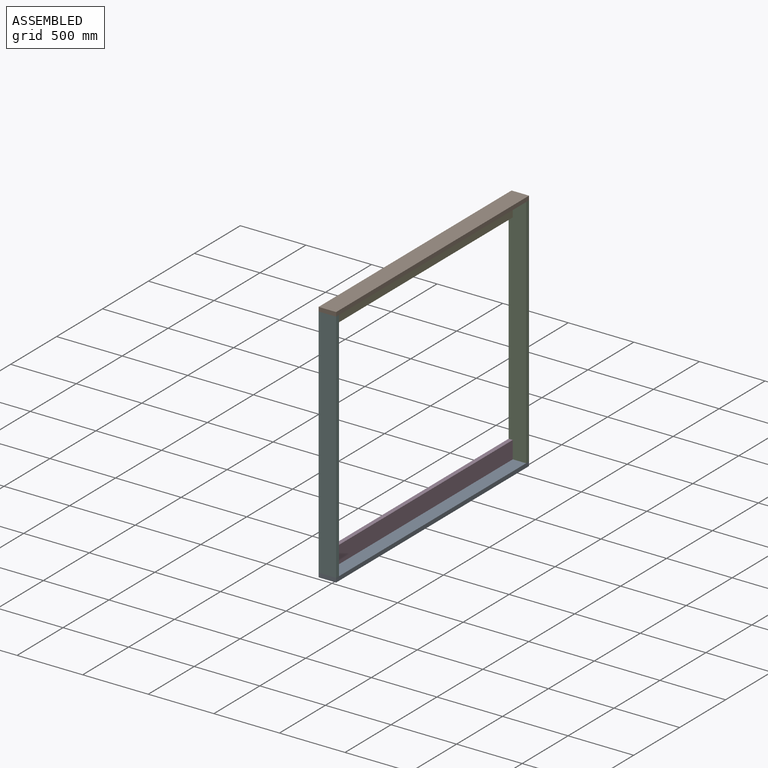
[diagram: assembled view]
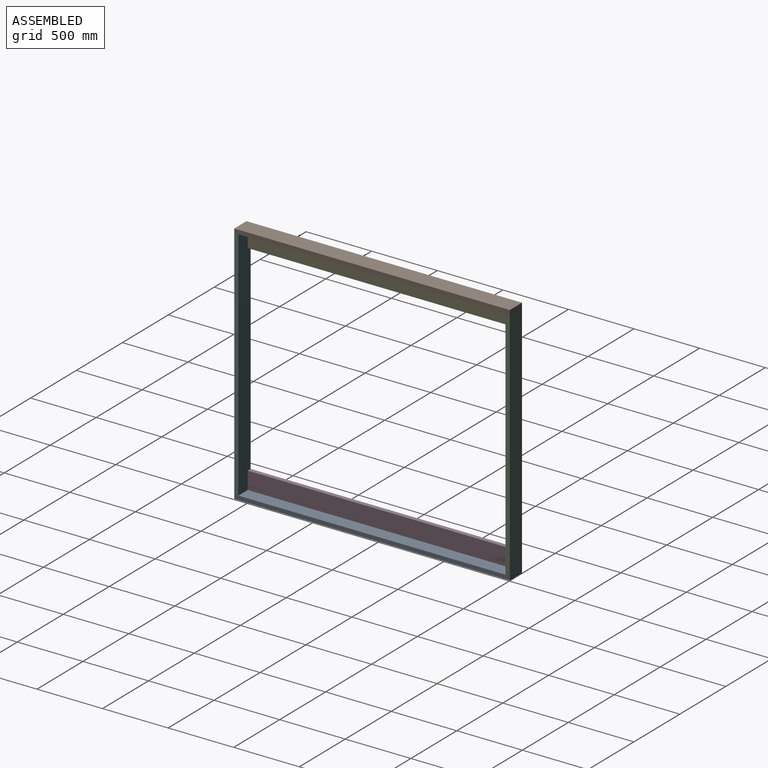
[diagram: assembled view, second angle]
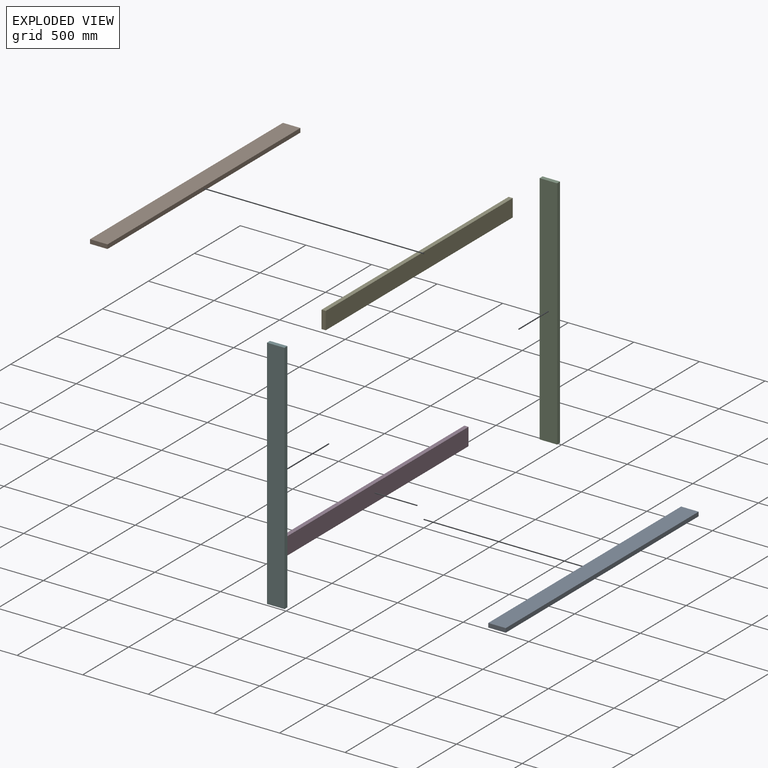
[diagram: exploded view]
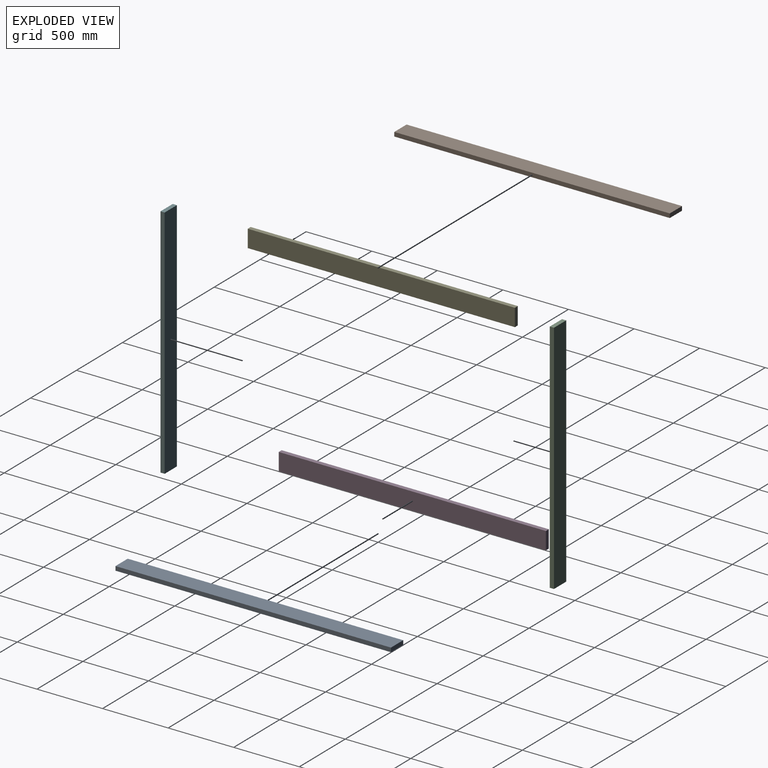
[diagram: exploded view, second angle]
ASSEMBLY  parts=6 mates=5
PART A: 6 faces, bbox 133.4x2100x31.8 mm
  f0: plane 2100x31.75mm, normal (1,0,0), area 66675mm2, adj f1,f3,f4,f5
  f1: plane 2100x133.35mm, normal (0,0,1), area 280035mm2, adj f0,f2,f4,f5
  f2: plane 2100x31.75mm, normal (-1,0,0), area 66675mm2, adj f1,f3,f4,f5
  f3: plane 2100x133.35mm, normal (0,0,-1), area 280035mm2, adj f0,f2,f4,f5
  f4: plane 133.35x31.75mm, normal (0,-1,0), area 4233.9mm2, adj f0,f1,f2,f3
  f5: plane 133.35x31.75mm, normal (0,1,0), area 4233.9mm2, adj f0,f1,f2,f3
PART B: same geometry as A
PART C: 6 faces, bbox 133.4x1800x31.8 mm
  f0: plane 1800x31.75mm, normal (1,0,0), area 57150mm2, adj f1,f3,f4,f5
  f1: plane 1800x133.35mm, normal (0,0,1), area 240030mm2, adj f0,f2,f4,f5
  f2: plane 1800x31.75mm, normal (-1,0,0), area 57150mm2, adj f1,f3,f4,f5
  f3: plane 1800x133.35mm, normal (0,0,-1), area 240030mm2, adj f0,f2,f4,f5
  f4: plane 133.35x31.75mm, normal (0,-1,0), area 4233.9mm2, adj f0,f1,f2,f3
  f5: plane 133.35x31.75mm, normal (0,1,0), area 4233.9mm2, adj f0,f1,f2,f3
PART D: 6 faces, bbox 133.4x2036.5x31.8 mm
  f0: plane 2036.5x31.75mm, normal (1,0,0), area 64658.9mm2, adj f1,f3,f4,f5
  f1: plane 2036.5x133.35mm, normal (0,0,1), area 271567.3mm2, adj f0,f2,f4,f5
  f2: plane 2036.5x31.75mm, normal (-1,0,0), area 64658.9mm2, adj f1,f3,f4,f5
  f3: plane 2036.5x133.35mm, normal (0,0,-1), area 271567.3mm2, adj f0,f2,f4,f5
  f4: plane 133.35x31.75mm, normal (0,-1,0), area 4233.9mm2, adj f0,f1,f2,f3
  f5: plane 133.35x31.75mm, normal (0,1,0), area 4233.9mm2, adj f0,f1,f2,f3
PART E: same geometry as D
PART F: same geometry as C
PLACE A t=(0,0,-1831.75)mm
PLACE B at identity fixed
PLACE C rot(axis=(1,0,0),90deg) t=(0,1034.12,-915.88)mm
PLACE D rot(axis=(0,1,0),90deg) t=(-50.8,0,-1749.2)mm
PLACE E rot(axis=(0,1,0),90deg) t=(-50.8,0,-82.55)mm
PLACE F rot(axis=(-1,0,0),90deg) t=(0,-1034.12,-915.88)mm
MATE fastened C.f0 <-> B.f0  axis (-1,0,0) through (66.68,1050,-15.87)mm
MATE fastened E.f3 <-> F.f2  axis (-1,0,0) through (-66.67,-1018.25,-15.87)mm
MATE fastened D.f3 <-> F.f2  axis (-1,0,0) through (-66.67,-1018.25,-1815.88)mm
MATE fastened A.f0 <-> C.f0  axis (1,0,0) through (66.67,1050,-1815.88)mm
MATE fastened F.f0 <-> A.f0  axis (1,0,0) through (66.68,-1050,-1815.88)mm
